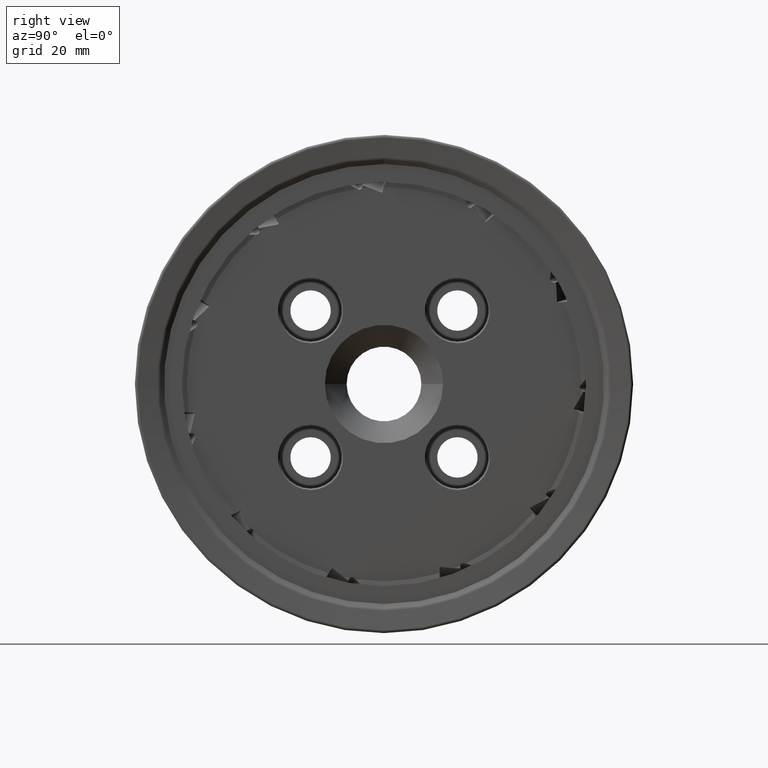
[diagram: clean part render]
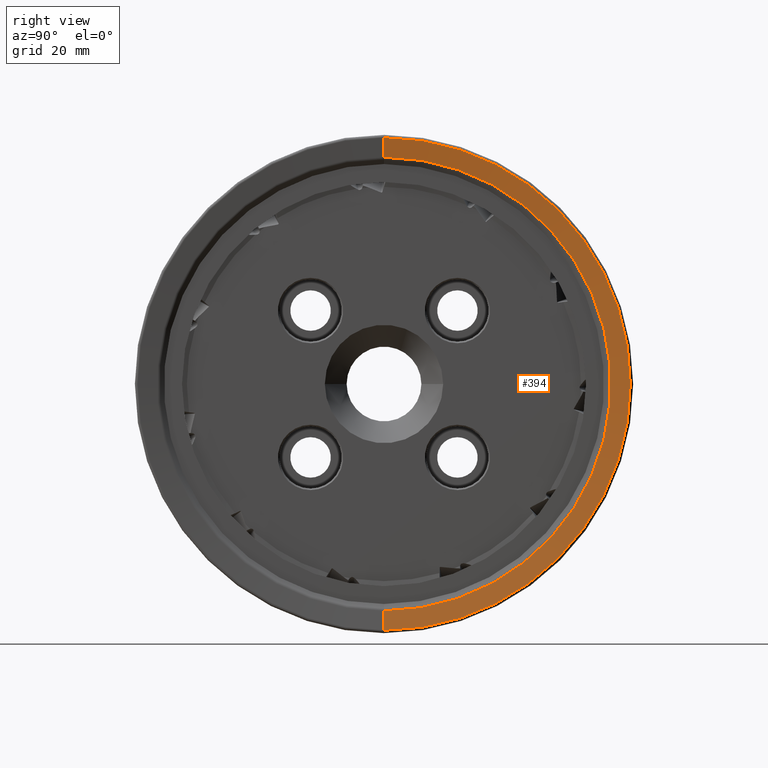
[diagram: same view with one face highlighted and labeled with its STEP entity id]
A machine part, right view. The second image highlights one B-rep face of the part: STEP entity #394.
In plain terms, the highlighted conical surface has half-angle 83.568 deg.
Its self-contained STEP definition (entity closure, byte-faithful):
#394 = ADVANCED_FACE ( 'NONE', ( #6633 ), #6636, .F. ) ;
#1098 = EDGE_CURVE ( 'NONE', #1732, #1881, #9605, .T. ) ;
#1116 = EDGE_CURVE ( 'NONE', #1881, #2128, #9625, .T. ) ;
#1128 = EDGE_CURVE ( 'NONE', #1732, #1895, #9633, .T. ) ;
#1235 = EDGE_CURVE ( 'NONE', #1895, #2128, #9735, .T. ) ;
#1732 = VERTEX_POINT ( 'NONE', #12151 ) ;
#1881 = VERTEX_POINT ( 'NONE', #12976 ) ;
#1895 = VERTEX_POINT ( 'NONE', #12990 ) ;
#2128 = VERTEX_POINT ( 'NONE', #13223 ) ;
#2615 = DIRECTION ( 'NONE',  ( 0.0000000000000000000, 0.0000000000000000000, -1.000000000000000000 ) ) ;
#2616 = DIRECTION ( 'NONE',  ( 1.000000000000000000, -0.0000000000000000000, -0.0000000000000000000 ) ) ;
#2617 = CARTESIAN_POINT ( 'NONE',  ( 1.744862219897310300, 0.0000000000000000000, 0.0000000000000000000 ) ) ;
#5236 = EDGE_LOOP ( 'NONE', ( #15295, #15166, #15263, #15262 ) ) ;
#5676 = AXIS2_PLACEMENT_3D ( 'NONE', #2617, #2616, #2615 ) ;
#6633 = FACE_OUTER_BOUND ( 'NONE', #5236, .T. ) ;
#6636 = CONICAL_SURFACE ( 'NONE', #5676, 79.09236068706619000, 1.458534613765943200 ) ;
#9005 = AXIS2_PLACEMENT_3D ( 'NONE', #10602, #10607, #10608 ) ;
#9062 = AXIS2_PLACEMENT_3D ( 'NONE', #11058, #11078, #11079 ) ;
#9605 = CIRCLE ( 'NONE', #9005, 72.82825717929100100 ) ;
#9617 = VECTOR ( 'NONE', #10659, 1000.000000000000200 ) ;
#9625 = LINE ( 'NONE', #10658, #9617 ) ;
#9633 = LINE ( 'NONE', #10695, #9635 ) ;
#9635 = VECTOR ( 'NONE', #10704, 1000.000000000000200 ) ;
#9735 = CIRCLE ( 'NONE', #9062, 79.09236068706619000 ) ;
#10602 = CARTESIAN_POINT ( 'NONE',  ( 1.038674110235279000, 0.0000000000000000000, 0.0000000000000000000 ) ) ;
#10607 = DIRECTION ( 'NONE',  ( 1.000000000000000000, -0.0000000000000000000, -0.0000000000000000000 ) ) ;
#10608 = DIRECTION ( 'NONE',  ( 0.0000000000000000000, 0.0000000000000000000, -1.000000000000000000 ) ) ;
#10658 = CARTESIAN_POINT ( 'NONE',  ( 1.744862219897310300, 9.686020635242357200E-015, 79.09236068706619000 ) ) ;
#10659 = DIRECTION ( 'NONE',  ( 0.1120260616006783100, 1.216937976905155200E-016, 0.9937052689415715200 ) ) ;
#10695 = CARTESIAN_POINT ( 'NONE',  ( 1.744862219897310300, 0.0000000000000000000, -79.09236068706619000 ) ) ;
#10704 = DIRECTION ( 'NONE',  ( 0.1120260616006783100, 0.0000000000000000000, -0.9937052689415715200 ) ) ;
#11058 = CARTESIAN_POINT ( 'NONE',  ( 1.744862219897310300, 0.0000000000000000000, 0.0000000000000000000 ) ) ;
#11078 = DIRECTION ( 'NONE',  ( 1.000000000000000000, -0.0000000000000000000, -0.0000000000000000000 ) ) ;
#11079 = DIRECTION ( 'NONE',  ( 0.0000000000000000000, 0.0000000000000000000, -1.000000000000000000 ) ) ;
#12151 = CARTESIAN_POINT ( 'NONE',  ( 1.038674110235279000, 0.0000000000000000000, -72.82825717929100100 ) ) ;
#12976 = CARTESIAN_POINT ( 'NONE',  ( 1.038674110235279000, 9.302454919726128200E-015, 72.82825717929100100 ) ) ;
#12990 = CARTESIAN_POINT ( 'NONE',  ( 1.744862219897310300, 0.0000000000000000000, -79.09236068706619000 ) ) ;
#13223 = CARTESIAN_POINT ( 'NONE',  ( 1.744862219897310300, 9.686020635242357200E-015, 79.09236068706619000 ) ) ;
#15166 = ORIENTED_EDGE ( 'NONE', *, *, #1098, .F. ) ;
#15262 = ORIENTED_EDGE ( 'NONE', *, *, #1235, .T. ) ;
#15263 = ORIENTED_EDGE ( 'NONE', *, *, #1128, .T. ) ;
#15295 = ORIENTED_EDGE ( 'NONE', *, *, #1116, .F. ) ;